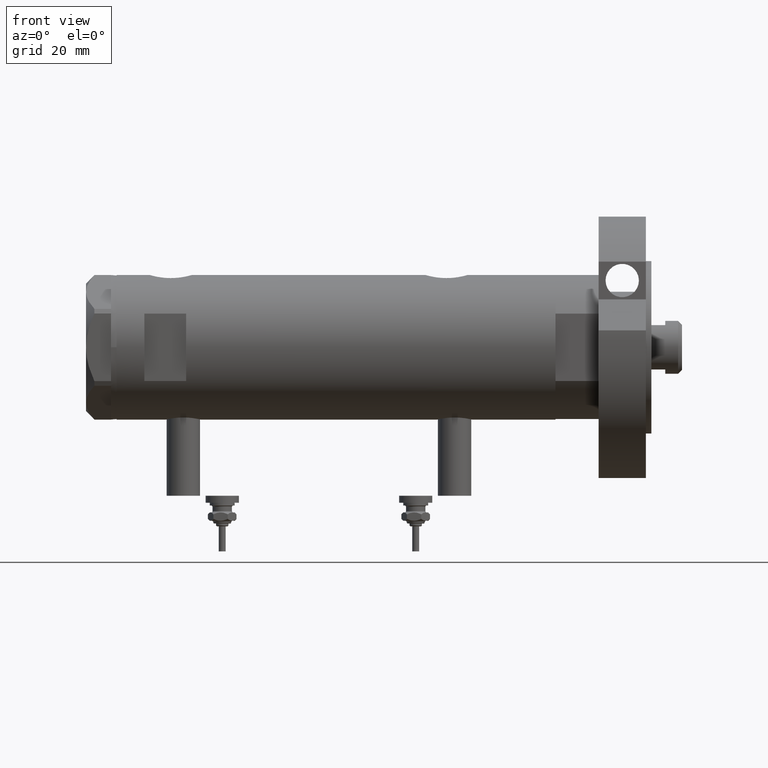
[diagram: clean part render]
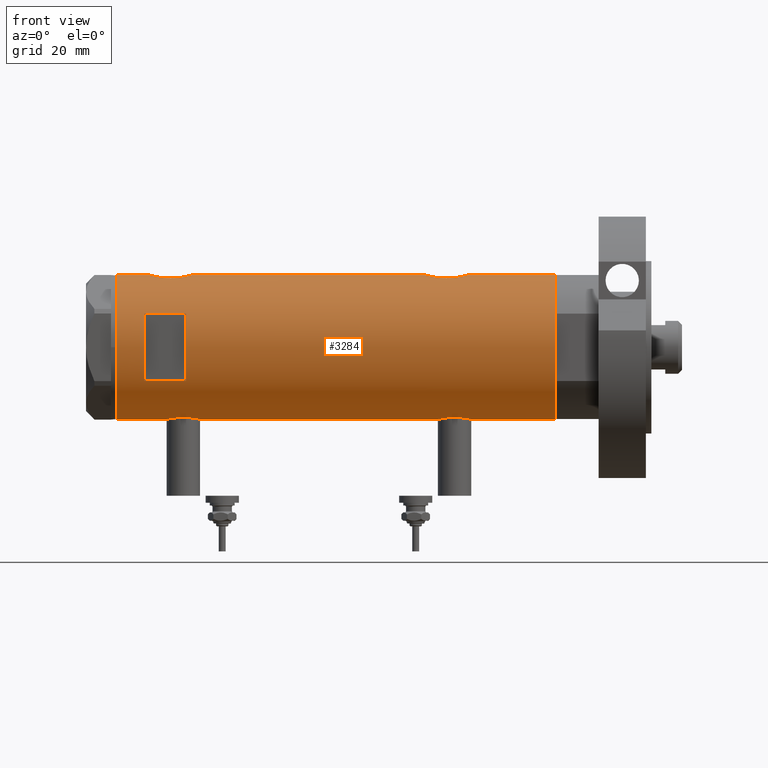
[diagram: same view with one face highlighted and labeled with its STEP entity id]
A machine part, front view. The second image highlights one B-rep face of the part: STEP entity #3284.
In plain terms, the highlighted cylindrical surface (partial cylindrical patch) has radius 26 mm, axis along (-1, -0, 0).
Its self-contained STEP definition (entity closure, byte-faithful):
#13 = CARTESIAN_POINT ( 'NONE',  ( -25.64593536028936072, -4.278686337618966995, -38.08968397039122067 ) ) ;
#19 = CARTESIAN_POINT ( 'NONE',  ( 25.11243836838845667, -6.738202653785825724, -43.07956649155158146 ) ) ;
#55 = CARTESIAN_POINT ( 'NONE',  ( -25.87202607293666645, -2.583404329177997116, -48.34473666854512430 ) ) ;
#56 = ORIENTED_EDGE ( 'NONE', *, *, #6747, .T. ) ;
#59 = CARTESIAN_POINT ( 'NONE',  ( 25.17510548814053095, -6.503212750695464450, -35.98238212184651275 ) ) ;
#85 = CARTESIAN_POINT ( 'NONE',  ( -25.23763877699558122, -6.249927116972450847, -42.85835527665468447 ) ) ;
#89 = CARTESIAN_POINT ( 'NONE',  ( 25.72912156655465665, -3.765948295762491238, -46.25442975399223400 ) ) ;
#129 = CARTESIAN_POINT ( 'NONE',  ( -25.92364458890658696, -2.026637113504536458, 60.87630990691475574 ) ) ;
#170 = CARTESIAN_POINT ( 'NONE',  ( 25.00829008792691255, -7.115081037226466343, -37.32698996259182422 ) ) ;
#185 = CARTESIAN_POINT ( 'NONE',  ( 25.98599366666249111, -0.9828433289544116214, 66.90188401723474954 ) ) ;
#276 = ORIENTED_EDGE ( 'NONE', *, *, #7700, .T. ) ;
#387 = CARTESIAN_POINT ( 'NONE',  ( 25.01107424167500781, -7.102941973849612900, 57.02937151337422250 ) ) ;
#430 = CARTESIAN_POINT ( 'NONE',  ( 25.41756773306325456, -5.475260495868974786, 64.58140873656947178 ) ) ;
#463 = CARTESIAN_POINT ( 'NONE',  ( -25.78943824387524231, -3.306687742228910487, 49.64245861216535616 ) ) ;
#518 = CIRCLE ( 'NONE', #2969, 26.00000000000000355 ) ;
#543 = CARTESIAN_POINT ( 'NONE',  ( -25.23758491649667235, -6.250144606721711682, -42.23988300428196396 ) ) ;
#545 = CARTESIAN_POINT ( 'NONE',  ( 26.00000000000000355, -3.975025925197986111E-20, -32.25000000000000000 ) ) ;
#567 = VECTOR ( 'NONE', #1206, 1000.000000000000000 ) ;
#587 = CARTESIAN_POINT ( 'NONE',  ( -25.95206678899177888, -1.628763264760263230, -36.60199186669786542 ) ) ;
#621 = CARTESIAN_POINT ( 'NONE',  ( -25.42883439573801141, -5.424786127492342125, -39.51918542739093709 ) ) ;
#657 = CARTESIAN_POINT ( 'NONE',  ( -25.52274351135604391, -4.960534548086211970, -38.84248254659267729 ) ) ;
#662 = CARTESIAN_POINT ( 'NONE',  ( 25.59665538672496155, -4.580438224580676732, -33.79110872287610334 ) ) ;
#698 = CARTESIAN_POINT ( 'NONE',  ( -26.00000000000000355, 3.184077527325983904E-15, -48.90000000000001279 ) ) ;
#702 = CARTESIAN_POINT ( 'NONE',  ( 24.96970063328116751, -7.247045583599693863, -41.69719214854801237 ) ) ;
#740 = VERTEX_POINT ( 'NONE', #7764 ) ;
#771 = CARTESIAN_POINT ( 'NONE',  ( 25.01107424167501136, -7.102941973849614676, -42.17062848662576613 ) ) ;
#773 = VECTOR ( 'NONE', #6304, 1000.000000000000000 ) ;
#801 = VERTEX_POINT ( 'NONE', #1215 ) ;
#819 = CARTESIAN_POINT ( 'NONE',  ( -26.00000000000000355, -2.813058302341337106E-16, 61.20000000000000284 ) ) ;
#831 = CARTESIAN_POINT ( 'NONE',  ( 26.00000000000000355, -0.4910237949823177406, 66.94999999999998863 ) ) ;
#902 = ORIENTED_EDGE ( 'NONE', *, *, #7338, .F. ) ;
#912 = CARTESIAN_POINT ( 'NONE',  ( 25.93098857934041135, -1.953835360821271960, 52.19226335297440755 ) ) ;
#961 = CARTESIAN_POINT ( 'NONE',  ( 26.00000000000001066, -0.4982617809740563231, 51.95000000000000995 ) ) ;
#969 = CARTESIAN_POINT ( 'NONE',  ( -26.00000000000000355, -6.335391871414786776E-16, -36.39999999999999858 ) ) ;
#994 = CARTESIAN_POINT ( 'NONE',  ( 25.38109653984944103, -5.641393955635662039, 64.39819092448752258 ) ) ;
#1031 = CARTESIAN_POINT ( 'NONE',  ( 25.88994451797512397, -2.432613607265602162, 52.33859031286799279 ) ) ;
#1105 = CARTESIAN_POINT ( 'NONE',  ( -25.81160981652327280, -3.129523010631799718, 49.53607026277927616 ) ) ;
#1135 = CARTESIAN_POINT ( 'NONE',  ( -25.92425332714050867, -2.018894156999445411, -48.57896120675330565 ) ) ;
#1148 = B_SPLINE_CURVE_WITH_KNOTS ( 'NONE', 3,
 ( #1845, #3538, #5974, #7904, #7815, #2968, #6693, #1105, #463, #5461, #7254, #3016, #4847, #2407, #3091, #1763, #3699, #2930, #3659, #5369, #4210, #3613, #5413, #2313, #2441, #4290, #4177, #6739, #1720, #1347, #7410, #2485, #4361, #4927, #1376, #6280, #2600, #129, #4401, #6811, #7377, #819 ),
 .UNSPECIFIED., .F., .F.,
 ( 4, 2, 2, 2, 2, 2, 2, 2, 2, 2, 2, 2, 2, 2, 2, 2, 2, 2, 2, 2, 4 ),
 ( 0.01961238453869442941, 0.02083783025472767114, 0.02206327597076090941, 0.02267599882877753201, 0.02328872168679415461, 0.02451416740282739287, 0.02573961311886063114, 0.02696505883489386940, 0.02819050455092710766, 0.02880322740894371986, 0.02941595026696032858, 0.03064139598299354950, 0.03186684169902676694, 0.03309228741505998439, 0.03370501027307658271, 0.03431773313109318796, 0.03493045598910978627, 0.03554317884712639153, 0.03676862456315960898, 0.03799407027919282642, 0.03921951599522604387 ),
 .UNSPECIFIED. ) ;
#1206 = DIRECTION ( 'NONE',  ( -0.000000000000000000, -0.000000000000000000, -1.000000000000000000 ) ) ;
#1215 = CARTESIAN_POINT ( 'NONE',  ( 12.12435565298214080, -23.00000000000000355, 53.95000000000001705 ) ) ;
#1260 = CARTESIAN_POINT ( 'NONE',  ( -25.92364458890659762, -2.026637113504532017, -36.72369009308525278 ) ) ;
#1265 = CARTESIAN_POINT ( 'NONE',  ( 25.72873412774685775, -3.768477344985552424, -33.24712539855536164 ) ) ;
#1299 = CARTESIAN_POINT ( 'NONE',  ( -25.28632996747171902, -6.050474653715423479, -41.03088129158464881 ) ) ;
#1347 = CARTESIAN_POINT ( 'NONE',  ( -25.57167894663061958, -4.701762988462087733, 59.07280450192418186 ) ) ;
#1353 = EDGE_CURVE ( 'NONE', #5565, #4890, #1366, .T. ) ;
#1366 = LINE ( 'NONE', #6309, #5440 ) ;
#1376 = CARTESIAN_POINT ( 'NONE',  ( -25.74330903162726614, -3.648508829439214285, 60.02867714715799963 ) ) ;
#1415 = CARTESIAN_POINT ( 'NONE',  ( 25.41756773306326522, -5.475260495868973898, -34.61859126343051685 ) ) ;
#1436 = CARTESIAN_POINT ( 'NONE',  ( 25.72873412774686486, -3.768477344985556421, 65.95287460144461988 ) ) ;
#1477 = CARTESIAN_POINT ( 'NONE',  ( 25.31004928890826378, -5.952041021437455726, 64.01980599883506784 ) ) ;
#1566 = CARTESIAN_POINT ( 'NONE',  ( 24.96672817551787560, -7.257586026187392569, 61.40384199721296454 ) ) ;
#1580 = DIRECTION ( 'NONE',  ( 1.000000000000000000, 0.000000000000000000, 0.000000000000000000 ) ) ;
#1609 = CARTESIAN_POINT ( 'NONE',  ( 24.91324908721446718, -7.438459228814661373, 60.44017499374191260 ) ) ;
#1634 = VERTEX_POINT ( 'NONE', #969 ) ;
#1679 = ORIENTED_EDGE ( 'NONE', *, *, #4071, .F. ) ;
#1687 = CARTESIAN_POINT ( 'NONE',  ( 26.00000000000000355, 0.000000000000000000, 78.95000000000000284 ) ) ;
#1704 = EDGE_CURVE ( 'NONE', #6005, #740, #2419, .T. ) ;
#1720 = CARTESIAN_POINT ( 'NONE',  ( -25.52274351135605102, -4.960534548086199536, 58.75751745340734544 ) ) ;
#1758 = CARTESIAN_POINT ( 'NONE',  ( -25.28680988956730147, -6.048472998962283853, -44.27627694188245755 ) ) ;
#1763 = CARTESIAN_POINT ( 'NONE',  ( -25.31551596256916525, -5.928819821281959612, 52.92988508095918831 ) ) ;
#1793 = CARTESIAN_POINT ( 'NONE',  ( -25.49846181844014126, -5.083495422175134060, -39.00822496617402635 ) ) ;
#1845 = CARTESIAN_POINT ( 'NONE',  ( -26.00000000000000355, 3.184077527313362130E-15, 48.70000000000000995 ) ) ;
#1878 = CARTESIAN_POINT ( 'NONE',  ( -25.85385060263651269, -2.778671585188184689, -37.03685548695762009 ) ) ;
#1906 = VERTEX_POINT ( 'NONE', #2003 ) ;
#1918 = CARTESIAN_POINT ( 'NONE',  ( 24.89854802586676286, -7.487520416261737921, -39.25184316422095065 ) ) ;
#1940 = AXIS2_PLACEMENT_3D ( 'NONE', #4625, #2138, #1580 ) ;
#1960 = CARTESIAN_POINT ( 'NONE',  ( 25.93085545515512891, -1.956676574435509686, -32.49272963169732265 ) ) ;
#1974 = CARTESIAN_POINT ( 'NONE',  ( -26.00000000000000355, 3.184081677783118585E-15, -78.95000000000000284 ) ) ;
#1998 = CARTESIAN_POINT ( 'NONE',  ( 25.31004928890824957, -5.952041021437452173, -35.18019400116495632 ) ) ;
#2003 = CARTESIAN_POINT ( 'NONE',  ( 26.00000000000000355, -3.975028449552882818E-20, 66.95000000000000284 ) ) ;
#2030 = CARTESIAN_POINT ( 'NONE',  ( 25.98569226047905190, -0.9886551788957271825, -47.20082376600176133 ) ) ;
#2085 = CARTESIAN_POINT ( 'NONE',  ( 25.17510548814053450, -6.503212750695461786, 63.21761787815348299 ) ) ;
#2124 = EDGE_CURVE ( 'NONE', #4890, #1634, #3010, .T. ) ;
#2138 = DIRECTION ( 'NONE',  ( 0.000000000000000000, 0.000000000000000000, 1.000000000000000000 ) ) ;
#2162 = CARTESIAN_POINT ( 'NONE',  ( 25.48871066912673200, -5.133852125086510121, 53.97709693256022234 ) ) ;
#2179 = VECTOR ( 'NONE', #2900, 1000.000000000000000 ) ;
#2205 = CARTESIAN_POINT ( 'NONE',  ( 24.89478872726946079, -7.499966281647701294, 59.69821850634782123 ) ) ;
#2250 = ORIENTED_EDGE ( 'NONE', *, *, #1704, .F. ) ;
#2313 = CARTESIAN_POINT ( 'NONE',  ( -25.28632996747171902, -6.050474653715411932, 56.56911870841537393 ) ) ;
#2403 = CARTESIAN_POINT ( 'NONE',  ( -25.31538696791481868, -5.929326713517960812, -40.63203367791900433 ) ) ;
#2407 = CARTESIAN_POINT ( 'NONE',  ( -25.42977453177915947, -5.420307583276853691, 51.81187728206638354 ) ) ;
#2419 = LINE ( 'NONE', #3549, #567 ) ;
#2437 = CARTESIAN_POINT ( 'NONE',  ( -25.25769689814629615, -6.168504065326074759, -43.67646635296746638 ) ) ;
#2441 = CARTESIAN_POINT ( 'NONE',  ( -25.31538696791480447, -5.929326713517952818, 56.96796632208098998 ) ) ;
#2481 = CARTESIAN_POINT ( 'NONE',  ( -25.38744165544136777, -5.612847683295916212, -45.42987583238478067 ) ) ;
#2485 = CARTESIAN_POINT ( 'NONE',  ( -25.64593536028936782, -4.278686337618957225, 59.51031602960879496 ) ) ;
#2519 = CARTESIAN_POINT ( 'NONE',  ( -25.24765475072630139, -6.209883762780014749, -41.83321815644903552 ) ) ;
#2523 = CARTESIAN_POINT ( 'NONE',  ( 25.27534302296961854, -6.097250460344746159, -35.37590386902926554 ) ) ;
#2540 = CARTESIAN_POINT ( 'NONE',  ( 0.000000000000000000, 0.000000000000000000, -78.95000000000000284 ) ) ;
#2557 = CARTESIAN_POINT ( 'NONE',  ( 25.52449676677459678, -4.953491517965876945, -45.38674491334075611 ) ) ;
#2600 = CARTESIAN_POINT ( 'NONE',  ( -25.85385060263650203, -2.778671585188186910, 60.56314451304238133 ) ) ;
#2636 = CARTESIAN_POINT ( 'NONE',  ( 25.30930190055640239, -5.959775463244125326, -44.32974043478029103 ) ) ;
#2696 = VERTEX_POINT ( 'NONE', #4542 ) ;
#2851 = CARTESIAN_POINT ( 'NONE',  ( 25.78902964777116580, -3.336582972512951883, 52.71524159542262566 ) ) ;
#2898 = CARTESIAN_POINT ( 'NONE',  ( 25.00829008792692321, -7.115081037226465455, 61.87301003740819993 ) ) ;
#2900 = DIRECTION ( 'NONE',  ( 0.000000000000000000, 0.000000000000000000, 1.000000000000000000 ) ) ;
#2930 = CARTESIAN_POINT ( 'NONE',  ( -25.25769689814630325, -6.168504065326071206, 53.92353364703255636 ) ) ;
#2949 = DIRECTION ( 'NONE',  ( 0.000000000000000000, 0.000000000000000000, 1.000000000000000000 ) ) ;
#2968 = CARTESIAN_POINT ( 'NONE',  ( -25.87202607293666645, -2.583404329177992675, 49.25526333145489133 ) ) ;
#2969 = AXIS2_PLACEMENT_3D ( 'NONE', #5616, #6870, #3187 ) ;
#3010 = B_SPLINE_CURVE_WITH_KNOTS ( 'NONE', 3,
 ( #698, #4356, #4205, #3087, #1135, #55, #6735, #6807, #3168, #3609, #5456, #6644, #5598, #6049, #2481, #7283, #1758, #2437, #4964, #6161, #85, #543, #2519, #1299, #2403, #4843, #621, #1793, #657, #5524, #4244, #13, #3770, #6687, #6768, #6097, #1878, #1260, #587, #3053, #5489, #7935 ),
 .UNSPECIFIED., .F., .F.,
 ( 4, 2, 2, 2, 2, 2, 2, 2, 2, 2, 2, 2, 2, 2, 2, 2, 2, 2, 2, 2, 4 ),
 ( 0.01961238453869445370, 0.02083783025472768849, 0.02206327597076092328, 0.02267599882877753895, 0.02328872168679415461, 0.02451416740282739287, 0.02573961311886063114, 0.02696505883489386593, 0.02819050455092710072, 0.02880322740894371292, 0.02941595026696031817, 0.03064139598299353562, 0.03186684169902675307, 0.03309228741505997051, 0.03370501027307658271, 0.03431773313109318796, 0.03493045598910979321, 0.03554317884712640541, 0.03676862456315962979, 0.03799407027919286112, 0.03921951599522608550 ),
 .UNSPECIFIED. ) ;
#3016 = CARTESIAN_POINT ( 'NONE',  ( -25.57228991600092627, -4.705691472451699831, 50.81660309875346826 ) ) ;
#3053 = CARTESIAN_POINT ( 'NONE',  ( -25.99009752186832856, -0.8230863847107483533, -36.44082928593318371 ) ) ;
#3083 = DIRECTION ( 'NONE',  ( 0.000000000000000000, 0.000000000000000000, 1.000000000000000000 ) ) ;
#3087 = CARTESIAN_POINT ( 'NONE',  ( -25.95218276861526263, -1.627663810194436067, -48.69850980387603556 ) ) ;
#3091 = CARTESIAN_POINT ( 'NONE',  ( -25.38744165544137132, -5.612847683295914436, 52.17012416761526339 ) ) ;
#3113 = ORIENTED_EDGE ( 'NONE', *, *, #5218, .T. ) ;
#3130 = LINE ( 'NONE', #5566, #5657 ) ;
#3133 = CARTESIAN_POINT ( 'NONE',  ( 25.52567976009756379, -4.956266804246105551, -34.09980072540906093 ) ) ;
#3168 = CARTESIAN_POINT ( 'NONE',  ( -25.78943824387523165, -3.306687742228911375, -47.95754138783466658 ) ) ;
#3172 = CARTESIAN_POINT ( 'NONE',  ( 25.48871066912673200, -5.133852125086511009, -45.22290306743978050 ) ) ;
#3187 = DIRECTION ( 'NONE',  ( 1.000000000000000000, 0.000000000000000000, 0.000000000000000000 ) ) ;
#3225 = EDGE_CURVE ( 'NONE', #1634, #7417, #6579, .T. ) ;
#3231 = ORIENTED_EDGE ( 'NONE', *, *, #7300, .F. ) ;
#3247 = CARTESIAN_POINT ( 'NONE',  ( 25.62983961939740141, -4.376509667782454649, -45.84558499042960733 ) ) ;
#3284 = ADVANCED_FACE ( 'NONE', ( #4818, #7260 ), #3544, .T. ) ;
#3290 = CARTESIAN_POINT ( 'NONE',  ( 25.38125492692910612, -5.649348210287294059, -44.70694334346394072 ) ) ;
#3337 = CARTESIAN_POINT ( 'NONE',  ( 24.89854802586675930, -7.487520416261737033, 59.94815683577904508 ) ) ;
#3346 = B_SPLINE_CURVE_WITH_KNOTS ( 'NONE', 3,
 ( #5699, #831, #185, #7540, #4488, #6940, #1436, #3903, #6343, #430, #994, #1477, #7705, #2085, #6985, #2898, #1566, #6504, #1609, #3337, #2205, #6471, #3460, #3427, #5217, #387, #4657, #5768, #7060, #4528, #5859, #2162, #4065, #4023, #4610, #7101, #2851, #1031, #912, #5894, #961, #7020 ),
 .UNSPECIFIED., .F., .F.,
 ( 4, 2, 2, 2, 2, 2, 2, 2, 2, 2, 2, 2, 2, 2, 2, 2, 2, 2, 2, 2, 4 ),
 ( 0.02357432247332888128, 0.02504731828495720264, 0.02652031409658552746, 0.02799330990821384882, 0.02946630571984217017, 0.03020280362565634646, 0.03093930153147052275, 0.03241229734309883370, 0.03388529315472715159, 0.03462179106054130706, 0.03535828896635546947, 0.03683128477798380818, 0.03756778268379798447, 0.03830428058961215382, 0.03977727640124052721, 0.04125027221286890755, 0.04198677011868309772, 0.04272326802449730176, 0.04419626383612570292, 0.04566925964775411101, 0.04714225545938251910 ),
 .UNSPECIFIED. ) ;
#3359 = DIRECTION ( 'NONE',  ( 0.000000000000000000, 0.000000000000000000, 1.000000000000000000 ) ) ;
#3391 = EDGE_LOOP ( 'NONE', ( #4206, #2250, #5368, #3708 ) ) ;
#3427 = CARTESIAN_POINT ( 'NONE',  ( 24.95200646071793926, -7.307522494171281302, 57.74392435812723079 ) ) ;
#3450 = CARTESIAN_POINT ( 'NONE',  ( -26.00000000000000355, 3.184077527313362130E-15, 48.70000000000000995 ) ) ;
#3460 = CARTESIAN_POINT ( 'NONE',  ( 24.90947356773250121, -7.451722770779340976, 58.46809158171851095 ) ) ;
#3484 = CARTESIAN_POINT ( 'NONE',  ( -26.00000000000000355, -2.813058302341337106E-16, 61.20000000000000284 ) ) ;
#3538 = CARTESIAN_POINT ( 'NONE',  ( -26.00000000000000000, -0.4086738135806028960, 48.70000000000000995 ) ) ;
#3544 = CYLINDRICAL_SURFACE ( 'NONE', #4115, 26.00000000000000355 ) ;
#3549 = CARTESIAN_POINT ( 'NONE',  ( -12.12435565298214080, -23.00000000000000355, -78.95000000000000284 ) ) ;
#3588 = ORIENTED_EDGE ( 'NONE', *, *, #4312, .T. ) ;
#3609 = CARTESIAN_POINT ( 'NONE',  ( -25.72076778631231164, -3.815670258243489599, -47.61687810531881127 ) ) ;
#3613 = CARTESIAN_POINT ( 'NONE',  ( -25.23758491649666169, -6.250144606721704577, 55.36011699571807299 ) ) ;
#3659 = CARTESIAN_POINT ( 'NONE',  ( -25.25025691038242570, -6.198787452305309920, 54.12558834604206481 ) ) ;
#3670 = ORIENTED_EDGE ( 'NONE', *, *, #1353, .F. ) ;
#3699 = CARTESIAN_POINT ( 'NONE',  ( -25.28680988956730857, -6.048472998962280300, 53.32372305811759361 ) ) ;
#3708 = ORIENTED_EDGE ( 'NONE', *, *, #6358, .F. ) ;
#3724 = CARTESIAN_POINT ( 'NONE',  ( 26.00000000000000355, 0.000000000000000000, -78.95000000000000284 ) ) ;
#3731 = CARTESIAN_POINT ( 'NONE',  ( 25.98599366666249466, -0.9828433289544072915, -32.29811598276526752 ) ) ;
#3736 = CIRCLE ( 'NONE', #4748, 26.00000000000000355 ) ;
#3766 = CARTESIAN_POINT ( 'NONE',  ( 26.00000000000000355, 3.343657407582877388E-16, -47.25000000000000000 ) ) ;
#3767 = AXIS2_PLACEMENT_3D ( 'NONE', #2540, #5024, #4981 ) ;
#3770 = CARTESIAN_POINT ( 'NONE',  ( -25.67063510297210271, -4.128418051804850997, -37.95317424728735034 ) ) ;
#3774 = CARTESIAN_POINT ( 'NONE',  ( 24.89475831528845262, -7.500067228253130658, -40.24337428253534910 ) ) ;
#3812 = CARTESIAN_POINT ( 'NONE',  ( 24.91324908721445652, -7.438459228814655155, -38.75982500625809024 ) ) ;
#3843 = CARTESIAN_POINT ( 'NONE',  ( 24.96672817551788270, -7.257586026187393458, -37.79615800278702409 ) ) ;
#3886 = CARTESIAN_POINT ( 'NONE',  ( 24.92415241886515176, -7.401968919186680651, -38.51676462555185054 ) ) ;
#3903 = CARTESIAN_POINT ( 'NONE',  ( 25.59665538672496865, -4.580438224580679396, 65.40889127712388529 ) ) ;
#3956 = LINE ( 'NONE', #6395, #6803 ) ;
#4012 = CARTESIAN_POINT ( 'NONE',  ( -12.12435565298214080, -23.00000000000000355, 68.95000000000003126 ) ) ;
#4023 = CARTESIAN_POINT ( 'NONE',  ( 25.59500516383205948, -4.575229401795795958, 53.50212244934583339 ) ) ;
#4032 = B_SPLINE_CURVE_WITH_KNOTS ( 'NONE', 3,
 ( #5637, #7449, #3731, #1960, #5079, #6325, #1265, #662, #3133, #1415, #5569, #1998, #2523, #59, #5602, #170, #3843, #3886, #3812, #1918, #4968, #3774, #6209, #6244, #702, #771, #4441, #19, #6886, #2636, #3290, #3172, #2557, #6854, #3247, #89, #5004, #5678, #7525, #2030, #4468, #6920 ),
 .UNSPECIFIED., .F., .F.,
 ( 4, 2, 2, 2, 2, 2, 2, 2, 2, 2, 2, 2, 2, 2, 2, 2, 2, 2, 2, 2, 4 ),
 ( 0.02357432247332888128, 0.02504731828495719570, 0.02652031409658551359, 0.02799330990821382800, 0.02946630571984214589, 0.03020280362565630136, 0.03093930153147046030, 0.03241229734309879207, 0.03388529315472712383, 0.03462179106054129318, 0.03535828896635545560, 0.03683128477798380818, 0.03756778268379799834, 0.03830428058961218157, 0.03977727640124056885, 0.04125027221286896306, 0.04198677011868315323, 0.04272326802449734340, 0.04419626383612573067, 0.04566925964775411795, 0.04714225545938250522 ),
 .UNSPECIFIED. ) ;
#4065 = CARTESIAN_POINT ( 'NONE',  ( 25.52449676677458612, -4.953491517965881386, 53.81325508665923962 ) ) ;
#4071 = EDGE_CURVE ( 'NONE', #5131, #4557, #6431, .T. ) ;
#4115 = AXIS2_PLACEMENT_3D ( 'NONE', #4892, #7217, #4770 ) ;
#4177 = CARTESIAN_POINT ( 'NONE',  ( -25.42883439573800430, -5.424786127492328802, 58.08081457260910696 ) ) ;
#4205 = CARTESIAN_POINT ( 'NONE',  ( -25.99036913299956453, -0.8159609457881494832, -48.86031143031891588 ) ) ;
#4206 = ORIENTED_EDGE ( 'NONE', *, *, #5382, .F. ) ;
#4210 = CARTESIAN_POINT ( 'NONE',  ( -25.23763877699556701, -6.249927116972441965, 54.74164472334533116 ) ) ;
#4244 = CARTESIAN_POINT ( 'NONE',  ( -25.59645788645699227, -4.565358797148523884, -38.37669470796522120 ) ) ;
#4290 = CARTESIAN_POINT ( 'NONE',  ( -25.38662204309617110, -5.616507264474310368, 57.72199377719326208 ) ) ;
#4312 = EDGE_CURVE ( 'NONE', #1906, #4557, #4906, .T. ) ;
#4356 = CARTESIAN_POINT ( 'NONE',  ( -26.00000000000000000, -0.4086738135806058381, -48.90000000000002700 ) ) ;
#4361 = CARTESIAN_POINT ( 'NONE',  ( -25.67063510297210271, -4.128418051804841227, 59.64682575271267240 ) ) ;
#4381 = CARTESIAN_POINT ( 'NONE',  ( -26.00000000000000355, 3.184081677783118585E-15, -78.95000000000000284 ) ) ;
#4401 = CARTESIAN_POINT ( 'NONE',  ( -25.95206678899177888, -1.628763264760260565, 60.99800813330215732 ) ) ;
#4405 = EDGE_CURVE ( 'NONE', #7584, #5131, #4982, .T. ) ;
#4437 = ORIENTED_EDGE ( 'NONE', *, *, #2124, .F. ) ;
#4441 = CARTESIAN_POINT ( 'NONE',  ( 25.03461301890608581, -7.019803056070506031, -42.40183183106896792 ) ) ;
#4450 = CARTESIAN_POINT ( 'NONE',  ( 26.00000000000000355, 0.000000000000000000, -78.95000000000000284 ) ) ;
#4468 = CARTESIAN_POINT ( 'NONE',  ( 25.99999999999999645, -0.4982617809740603199, -47.24999999999999289 ) ) ;
#4488 = CARTESIAN_POINT ( 'NONE',  ( 25.89059789403177092, -2.425642437452263156, 66.56377447242300605 ) ) ;
#4528 = CARTESIAN_POINT ( 'NONE',  ( 25.30930190055639883, -5.959775463244125326, 54.87025956521971892 ) ) ;
#4542 = CARTESIAN_POINT ( 'NONE',  ( 26.00000000000000355, -7.221007372182803218E-17, 51.95000000000000284 ) ) ;
#4557 = VERTEX_POINT ( 'NONE', #1687 ) ;
#4610 = CARTESIAN_POINT ( 'NONE',  ( 25.62983961939740496, -4.376509667782458202, 53.35441500957042393 ) ) ;
#4615 = CARTESIAN_POINT ( 'NONE',  ( 12.12435565298214080, -23.00000000000000355, 68.95000000000003126 ) ) ;
#4625 = CARTESIAN_POINT ( 'NONE',  ( 0.000000000000000000, 0.000000000000000000, 78.95000000000000284 ) ) ;
#4642 = CIRCLE ( 'NONE', #3767, 26.00000000000000355 ) ;
#4657 = CARTESIAN_POINT ( 'NONE',  ( 25.03461301890608581, -7.019803056070502478, 56.79816816893102782 ) ) ;
#4748 = AXIS2_PLACEMENT_3D ( 'NONE', #5506, #4782, #5431 ) ;
#4770 = DIRECTION ( 'NONE',  ( 1.000000000000000000, 0.000000000000000000, 0.000000000000000000 ) ) ;
#4782 = DIRECTION ( 'NONE',  ( -0.000000000000000000, -4.625929269271486900E-15, 1.000000000000000000 ) ) ;
#4818 = FACE_OUTER_BOUND ( 'NONE', #7581, .T. ) ;
#4825 = VERTEX_POINT ( 'NONE', #4450 ) ;
#4843 = CARTESIAN_POINT ( 'NONE',  ( -25.38662204309617465, -5.616507264474316585, -39.87800622280675356 ) ) ;
#4847 = CARTESIAN_POINT ( 'NONE',  ( -25.52190669608696183, -4.968444991210422934, 51.13658907807515419 ) ) ;
#4890 = VERTEX_POINT ( 'NONE', #6934 ) ;
#4892 = CARTESIAN_POINT ( 'NONE',  ( 0.000000000000000000, 0.000000000000000000, -78.95000000000000284 ) ) ;
#4906 = LINE ( 'NONE', #6146, #6817 ) ;
#4927 = CARTESIAN_POINT ( 'NONE',  ( -25.71926338401908652, -3.813768894920905872, 59.90572139833817289 ) ) ;
#4964 = CARTESIAN_POINT ( 'NONE',  ( -25.25025691038241860, -6.198787452305317025, -43.47441165395796503 ) ) ;
#4968 = CARTESIAN_POINT ( 'NONE',  ( 24.89478872726946079, -7.499966281647702182, -39.50178149365218871 ) ) ;
#4981 = DIRECTION ( 'NONE',  ( 1.000000000000000000, 0.000000000000000000, 0.000000000000000000 ) ) ;
#4982 = LINE ( 'NONE', #4381, #773 ) ;
#5004 = CARTESIAN_POINT ( 'NONE',  ( 25.78902964777116935, -3.336582972512946554, -46.48475840457737007 ) ) ;
#5024 = DIRECTION ( 'NONE',  ( 0.000000000000000000, 0.000000000000000000, 1.000000000000000000 ) ) ;
#5031 = DIRECTION ( 'NONE',  ( 0.000000000000000000, 0.000000000000000000, 1.000000000000000000 ) ) ;
#5079 = CARTESIAN_POINT ( 'NONE',  ( 25.89059789403177447, -2.425642437452257383, -32.63622552757698969 ) ) ;
#5131 = VERTEX_POINT ( 'NONE', #6102 ) ;
#5217 = CARTESIAN_POINT ( 'NONE',  ( 24.96970063328116751, -7.247045583599690310, 57.50280785145197626 ) ) ;
#5218 = EDGE_CURVE ( 'NONE', #6180, #2696, #3956, .T. ) ;
#5368 = ORIENTED_EDGE ( 'NONE', *, *, #5532, .F. ) ;
#5369 = CARTESIAN_POINT ( 'NONE',  ( -25.24022290516698419, -6.239518219915426656, 54.53402784061568553 ) ) ;
#5382 = EDGE_CURVE ( 'NONE', #740, #801, #3736, .T. ) ;
#5413 = CARTESIAN_POINT ( 'NONE',  ( -25.24765475072630139, -6.209883762780005867, 55.76678184355100854 ) ) ;
#5431 = DIRECTION ( 'NONE',  ( 1.776356839400250465E-15, 1.000000000000000000, 4.536969091016264466E-15 ) ) ;
#5440 = VECTOR ( 'NONE', #5031, 1000.000000000000000 ) ;
#5456 = CARTESIAN_POINT ( 'NONE',  ( -25.67167563980648382, -4.129238867693854509, -47.35934056431105432 ) ) ;
#5461 = CARTESIAN_POINT ( 'NONE',  ( -25.72076778631231164, -3.815670258243487378, 49.98312189468122568 ) ) ;
#5489 = CARTESIAN_POINT ( 'NONE',  ( -25.99999999999998934, -0.4144764235405737907, -36.39999999999999147 ) ) ;
#5506 = CARTESIAN_POINT ( 'NONE',  ( 0.000000000000000000, 0.000000000000000000, 53.95000000000012363 ) ) ;
#5524 = CARTESIAN_POINT ( 'NONE',  ( -25.57167894663063024, -4.701762988462101944, -38.52719549807584798 ) ) ;
#5532 = EDGE_CURVE ( 'NONE', #6973, #6005, #518, .T. ) ;
#5565 = VERTEX_POINT ( 'NONE', #1974 ) ;
#5566 = CARTESIAN_POINT ( 'NONE',  ( 12.12435565298214080, -23.00000000000000355, -78.95000000000000284 ) ) ;
#5569 = CARTESIAN_POINT ( 'NONE',  ( 25.38109653984943748, -5.641393955635659374, -34.80180907551250158 ) ) ;
#5575 = EDGE_CURVE ( 'NONE', #1906, #2696, #3346, .T. ) ;
#5598 = CARTESIAN_POINT ( 'NONE',  ( -25.52190669608696183, -4.968444991210430040, -46.46341092192485434 ) ) ;
#5602 = CARTESIAN_POINT ( 'NONE',  ( 25.11342038069227200, -6.734617143597207978, -36.41229304209507234 ) ) ;
#5616 = CARTESIAN_POINT ( 'NONE',  ( 0.000000000000000000, 0.000000000000000000, 68.95000000000003126 ) ) ;
#5637 = CARTESIAN_POINT ( 'NONE',  ( 26.00000000000000355, -3.975025925197986111E-20, -32.25000000000000000 ) ) ;
#5657 = VECTOR ( 'NONE', #7490, 1000.000000000000000 ) ;
#5678 = CARTESIAN_POINT ( 'NONE',  ( 25.88994451797511331, -2.432613607265599498, -46.86140968713201005 ) ) ;
#5699 = CARTESIAN_POINT ( 'NONE',  ( 26.00000000000000355, -3.975028449552882818E-20, 66.95000000000000284 ) ) ;
#5768 = CARTESIAN_POINT ( 'NONE',  ( 25.11243836838845667, -6.738202653785824836, 56.12043350844841427 ) ) ;
#5859 = CARTESIAN_POINT ( 'NONE',  ( 25.38125492692910967, -5.649348210287291394, 54.49305665653605502 ) ) ;
#5894 = CARTESIAN_POINT ( 'NONE',  ( 25.98569226047905545, -0.9886551788957260722, 51.99917623399824151 ) ) ;
#5974 = CARTESIAN_POINT ( 'NONE',  ( -25.99036913299955742, -0.8159609457881432659, 48.73968856968109264 ) ) ;
#6005 = VERTEX_POINT ( 'NONE', #4012 ) ;
#6049 = CARTESIAN_POINT ( 'NONE',  ( -25.42977453177914882, -5.420307583276860797, -45.78812271793364630 ) ) ;
#6097 = CARTESIAN_POINT ( 'NONE',  ( -25.81232680456767170, -3.137210741985124507, -37.22886342778421920 ) ) ;
#6102 = CARTESIAN_POINT ( 'NONE',  ( -26.00000000000000355, 3.184081677783118585E-15, 78.95000000000000284 ) ) ;
#6108 = CARTESIAN_POINT ( 'NONE',  ( -26.00000000000000355, 3.184081677783118585E-15, -78.95000000000000284 ) ) ;
#6146 = CARTESIAN_POINT ( 'NONE',  ( 26.00000000000000355, 0.000000000000000000, -78.95000000000000284 ) ) ;
#6161 = CARTESIAN_POINT ( 'NONE',  ( -25.24022290516699485, -6.239518219915436426, -43.06597215938434431 ) ) ;
#6180 = VERTEX_POINT ( 'NONE', #545 ) ;
#6209 = CARTESIAN_POINT ( 'NONE',  ( 24.90947356773249766, -7.451722770779341865, -40.73190841828151321 ) ) ;
#6244 = CARTESIAN_POINT ( 'NONE',  ( 24.95200646071794282, -7.307522494171283967, -41.45607564187277205 ) ) ;
#6280 = CARTESIAN_POINT ( 'NONE',  ( -25.81232680456767170, -3.137210741985118290, 60.37113657221578933 ) ) ;
#6304 = DIRECTION ( 'NONE',  ( 0.000000000000000000, 0.000000000000000000, 1.000000000000000000 ) ) ;
#6309 = CARTESIAN_POINT ( 'NONE',  ( -26.00000000000000355, 3.184081677783118585E-15, -78.95000000000000284 ) ) ;
#6325 = CARTESIAN_POINT ( 'NONE',  ( 25.78993643992928853, -3.329561377902402697, -33.01178439721263658 ) ) ;
#6343 = CARTESIAN_POINT ( 'NONE',  ( 25.52567976009757089, -4.956266804246109103, 65.10019927459094902 ) ) ;
#6358 = EDGE_CURVE ( 'NONE', #801, #6973, #3130, .T. ) ;
#6395 = CARTESIAN_POINT ( 'NONE',  ( 26.00000000000000355, 0.000000000000000000, -78.95000000000000284 ) ) ;
#6431 = CIRCLE ( 'NONE', #1940, 26.00000000000000355 ) ;
#6471 = CARTESIAN_POINT ( 'NONE',  ( 24.89475831528844907, -7.500067228253130658, 58.95662571746464664 ) ) ;
#6504 = CARTESIAN_POINT ( 'NONE',  ( 24.92415241886516242, -7.401968919186685092, 60.68323537444815940 ) ) ;
#6579 = LINE ( 'NONE', #6108, #2179 ) ;
#6644 = CARTESIAN_POINT ( 'NONE',  ( -25.57228991600092272, -4.705691472451704271, -46.78339690124655448 ) ) ;
#6687 = CARTESIAN_POINT ( 'NONE',  ( -25.71926338401909362, -3.813768894920912977, -37.69427860166183564 ) ) ;
#6693 = CARTESIAN_POINT ( 'NONE',  ( -25.85288666140180780, -2.767917424206675747, 49.34257790010328648 ) ) ;
#6735 = CARTESIAN_POINT ( 'NONE',  ( -25.85288666140181491, -2.767917424206677079, -48.25742209989675047 ) ) ;
#6739 = CARTESIAN_POINT ( 'NONE',  ( -25.49846181844015192, -5.083495422175122513, 58.59177503382597507 ) ) ;
#6747 = EDGE_CURVE ( 'NONE', #5565, #4825, #4642, .T. ) ;
#6768 = CARTESIAN_POINT ( 'NONE',  ( -25.74330903162725903, -3.648508829439220946, -37.57132285284201600 ) ) ;
#6803 = VECTOR ( 'NONE', #3359, 1000.000000000000000 ) ;
#6807 = CARTESIAN_POINT ( 'NONE',  ( -25.81160981652327280, -3.129523010631800606, -48.06392973722076079 ) ) ;
#6811 = CARTESIAN_POINT ( 'NONE',  ( -25.99009752186832500, -0.8230863847107482423, 61.15917071406682481 ) ) ;
#6817 = VECTOR ( 'NONE', #2949, 1000.000000000000000 ) ;
#6854 = CARTESIAN_POINT ( 'NONE',  ( 25.59500516383205593, -4.575229401795787965, -45.69787755065420498 ) ) ;
#6870 = DIRECTION ( 'NONE',  ( -0.000000000000000000, 0.000000000000000000, -1.000000000000000000 ) ) ;
#6880 = LINE ( 'NONE', #3724, #7863 ) ;
#6886 = CARTESIAN_POINT ( 'NONE',  ( 25.17393786935995692, -6.507882790539420981, -43.51037333344031310 ) ) ;
#6920 = CARTESIAN_POINT ( 'NONE',  ( 26.00000000000000355, 3.343657407582877388E-16, -47.25000000000000000 ) ) ;
#6934 = CARTESIAN_POINT ( 'NONE',  ( -26.00000000000000355, 3.184077527325983904E-15, -48.90000000000001279 ) ) ;
#6940 = CARTESIAN_POINT ( 'NONE',  ( 25.78993643992928497, -3.329561377902408914, 66.18821560278735205 ) ) ;
#6973 = VERTEX_POINT ( 'NONE', #4615 ) ;
#6985 = CARTESIAN_POINT ( 'NONE',  ( 25.11342038069227200, -6.734617143597204425, 62.78770695790495893 ) ) ;
#7020 = CARTESIAN_POINT ( 'NONE',  ( 26.00000000000000355, -7.221007372182803218E-17, 51.95000000000000284 ) ) ;
#7060 = CARTESIAN_POINT ( 'NONE',  ( 25.17393786935995692, -6.507882790539421869, 55.68962666655968974 ) ) ;
#7101 = CARTESIAN_POINT ( 'NONE',  ( 25.72912156655465310, -3.765948295762495235, 52.94557024600777595 ) ) ;
#7217 = DIRECTION ( 'NONE',  ( 0.000000000000000000, 0.000000000000000000, 1.000000000000000000 ) ) ;
#7254 = CARTESIAN_POINT ( 'NONE',  ( -25.67167563980648382, -4.129238867693851844, 50.24065943568894710 ) ) ;
#7260 = FACE_BOUND ( 'NONE', #3391, .T. ) ;
#7266 = ORIENTED_EDGE ( 'NONE', *, *, #4405, .F. ) ;
#7283 = CARTESIAN_POINT ( 'NONE',  ( -25.31551596256916525, -5.928819821281963165, -44.67011491904084153 ) ) ;
#7300 = EDGE_CURVE ( 'NONE', #7417, #7584, #1148, .T. ) ;
#7338 = EDGE_CURVE ( 'NONE', #6180, #7692, #4032, .T. ) ;
#7377 = CARTESIAN_POINT ( 'NONE',  ( -25.99999999999998934, -0.4144764235405755670, 61.19999999999998153 ) ) ;
#7410 = CARTESIAN_POINT ( 'NONE',  ( -25.59645788645698872, -4.565358797148513226, 59.22330529203479443 ) ) ;
#7417 = VERTEX_POINT ( 'NONE', #3450 ) ;
#7434 = ORIENTED_EDGE ( 'NONE', *, *, #3225, .F. ) ;
#7449 = CARTESIAN_POINT ( 'NONE',  ( 26.00000000000001066, -0.4910237949823163528, -32.25000000000000711 ) ) ;
#7490 = DIRECTION ( 'NONE',  ( 0.000000000000000000, 0.000000000000000000, 1.000000000000000000 ) ) ;
#7525 = CARTESIAN_POINT ( 'NONE',  ( 25.93098857934040424, -1.953835360821274847, -47.00773664702559529 ) ) ;
#7540 = CARTESIAN_POINT ( 'NONE',  ( 25.93085545515512536, -1.956676574435512794, 66.70727036830264467 ) ) ;
#7581 = EDGE_LOOP ( 'NONE', ( #3670, #56, #276, #902, #3113, #7662, #3588, #1679, #7266, #3231, #7434, #4437 ) ) ;
#7584 = VERTEX_POINT ( 'NONE', #3484 ) ;
#7662 = ORIENTED_EDGE ( 'NONE', *, *, #5575, .F. ) ;
#7692 = VERTEX_POINT ( 'NONE', #3766 ) ;
#7700 = EDGE_CURVE ( 'NONE', #4825, #7692, #6880, .T. ) ;
#7705 = CARTESIAN_POINT ( 'NONE',  ( 25.27534302296961854, -6.097250460344744383, 63.82409613097077283 ) ) ;
#7764 = CARTESIAN_POINT ( 'NONE',  ( -12.12435565298214080, -23.00000000000000355, 53.95000000000001705 ) ) ;
#7815 = CARTESIAN_POINT ( 'NONE',  ( -25.92425332714050867, -2.018894156999440526, 49.02103879324670288 ) ) ;
#7863 = VECTOR ( 'NONE', #3083, 1000.000000000000000 ) ;
#7904 = CARTESIAN_POINT ( 'NONE',  ( -25.95218276861526618, -1.627663810194429406, 48.90149019612395165 ) ) ;
#7935 = CARTESIAN_POINT ( 'NONE',  ( -26.00000000000000355, -6.335391871414786776E-16, -36.39999999999999858 ) ) ;